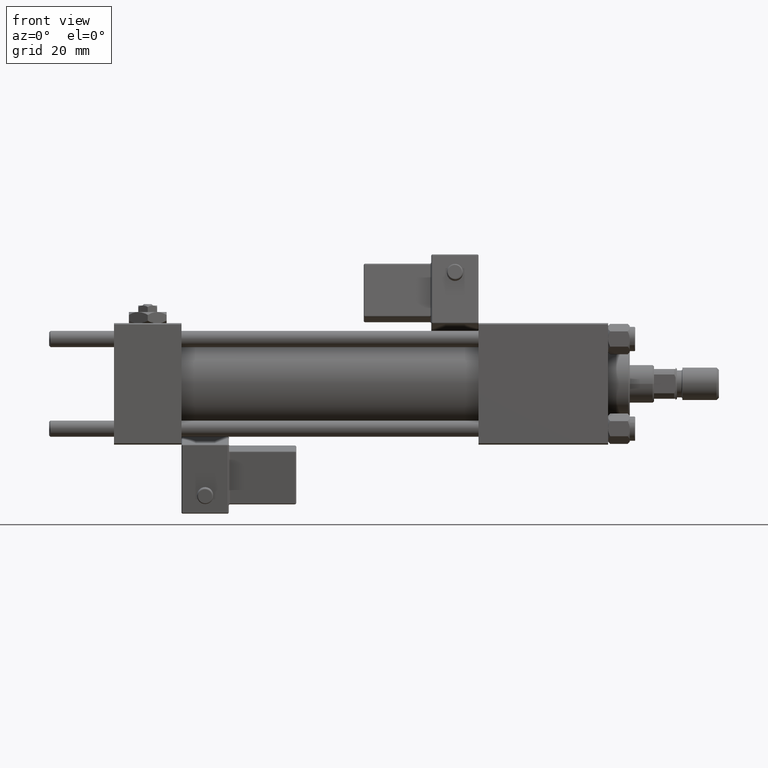
[diagram: clean part render]
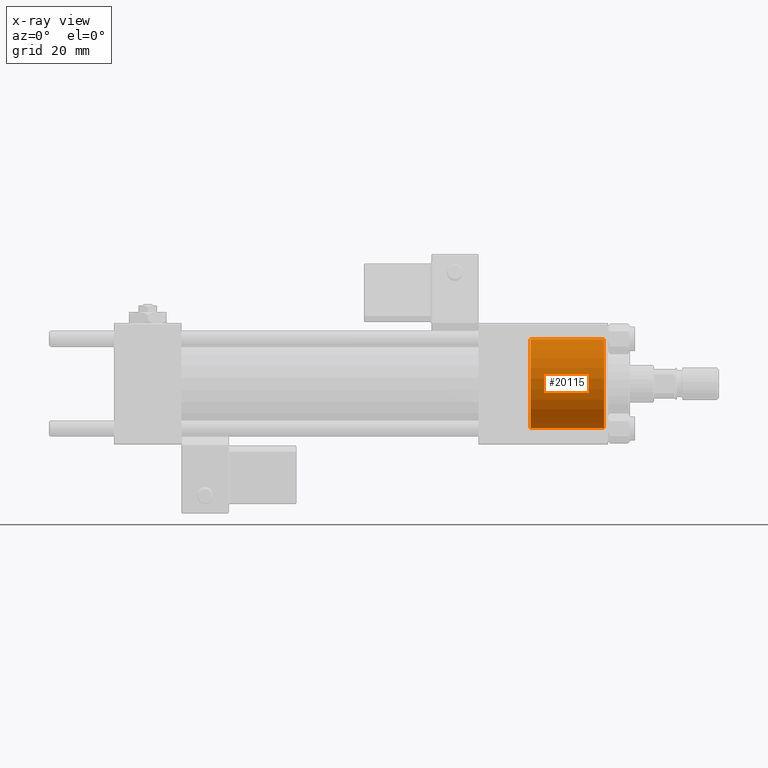
[diagram: x-ray — body ghosted, one internal face saturated and labeled with its STEP entity id]
A machine part, front view, then the same camera in x-ray: the body is ghosted and one INTERNAL B-rep face — a face not visible from any outside direction — is saturated and labeled: STEP entity #20115.
In plain terms, the highlighted cylindrical surface (partial cylindrical patch) has radius 16.5 mm, axis along (1, 0, 0).
Its self-contained STEP definition (entity closure, byte-faithful):
#1061 = VERTEX_POINT ( 'NONE', #29651 ) ;
#1086 = AXIS2_PLACEMENT_3D ( 'NONE', #22872, #48156, #48419 ) ;
#2751 = DIRECTION ( 'NONE',  ( 0.000000000000000000, 0.000000000000000000, -1.000000000000000000 ) ) ;
#8109 = CIRCLE ( 'NONE', #1086, 16.50000000000000000 ) ;
#8878 = VERTEX_POINT ( 'NONE', #31129 ) ;
#8975 = ORIENTED_EDGE ( 'NONE', *, *, #32758, .T. ) ;
#12012 = CARTESIAN_POINT ( 'NONE',  ( 181.5000000000000000, 0.000000000000000000, -16.50000000000000000 ) ) ;
#12147 = CARTESIAN_POINT ( 'NONE',  ( 154.2999999999999829, 0.000000000000000000, -16.50000000000000000 ) ) ;
#12340 = EDGE_CURVE ( 'NONE', #8878, #1061, #44370, .T. ) ;
#12741 = CARTESIAN_POINT ( 'NONE',  ( 154.2999999999999829, 2.020667218593133100E-15, 16.50000000000000000 ) ) ;
#17814 = ORIENTED_EDGE ( 'NONE', *, *, #32862, .F. ) ;
#18381 = VERTEX_POINT ( 'NONE', #12012 ) ;
#18436 = CARTESIAN_POINT ( 'NONE',  ( 154.2999999999999829, 0.000000000000000000, 0.000000000000000000 ) ) ;
#18671 = AXIS2_PLACEMENT_3D ( 'NONE', #40386, #41195, #2751 ) ;
#19314 = DIRECTION ( 'NONE',  ( 1.000000000000000000, -0.000000000000000000, -0.000000000000000000 ) ) ;
#20115 = ADVANCED_FACE ( 'NONE', ( #22546 ), #39302, .F. ) ;
#20531 = ORIENTED_EDGE ( 'NONE', *, *, #12340, .T. ) ;
#20547 = EDGE_LOOP ( 'NONE', ( #43716, #20531, #8975, #17814 ) ) ;
#22546 = FACE_OUTER_BOUND ( 'NONE', #20547, .T. ) ;
#22872 = CARTESIAN_POINT ( 'NONE',  ( 181.5000000000000000, 0.000000000000000000, 0.000000000000000000 ) ) ;
#29651 = CARTESIAN_POINT ( 'NONE',  ( 181.5000000000000000, 2.020667218593133100E-15, 16.50000000000000000 ) ) ;
#31129 = CARTESIAN_POINT ( 'NONE',  ( 154.2999999999999829, 2.020667218593133100E-15, 16.50000000000000000 ) ) ;
#32758 = EDGE_CURVE ( 'NONE', #1061, #18381, #8109, .T. ) ;
#32862 = EDGE_CURVE ( 'NONE', #42012, #18381, #33009, .T. ) ;
#33009 = LINE ( 'NONE', #12147, #40590 ) ;
#33233 = EDGE_CURVE ( 'NONE', #8878, #42012, #42334, .T. ) ;
#35186 = DIRECTION ( 'NONE',  ( 0.000000000000000000, 0.000000000000000000, -1.000000000000000000 ) ) ;
#37736 = DIRECTION ( 'NONE',  ( 1.000000000000000000, -0.000000000000000000, -0.000000000000000000 ) ) ;
#38033 = VECTOR ( 'NONE', #37736, 1000.000000000000000 ) ;
#38349 = CARTESIAN_POINT ( 'NONE',  ( 154.2999999999999829, 0.000000000000000000, -16.50000000000000000 ) ) ;
#39302 = CYLINDRICAL_SURFACE ( 'NONE', #47880, 16.50000000000000000 ) ;
#40386 = CARTESIAN_POINT ( 'NONE',  ( 154.2999999999999829, 0.000000000000000000, 0.000000000000000000 ) ) ;
#40590 = VECTOR ( 'NONE', #19314, 1000.000000000000000 ) ;
#41195 = DIRECTION ( 'NONE',  ( 1.000000000000000000, 0.000000000000000000, 0.000000000000000000 ) ) ;
#42012 = VERTEX_POINT ( 'NONE', #38349 ) ;
#42334 = CIRCLE ( 'NONE', #18671, 16.50000000000000000 ) ;
#43716 = ORIENTED_EDGE ( 'NONE', *, *, #33233, .F. ) ;
#44370 = LINE ( 'NONE', #12741, #38033 ) ;
#47880 = AXIS2_PLACEMENT_3D ( 'NONE', #18436, #48100, #35186 ) ;
#48100 = DIRECTION ( 'NONE',  ( 1.000000000000000000, -0.000000000000000000, -0.000000000000000000 ) ) ;
#48156 = DIRECTION ( 'NONE',  ( 1.000000000000000000, 0.000000000000000000, 0.000000000000000000 ) ) ;
#48419 = DIRECTION ( 'NONE',  ( 0.000000000000000000, 0.000000000000000000, 1.000000000000000000 ) ) ;